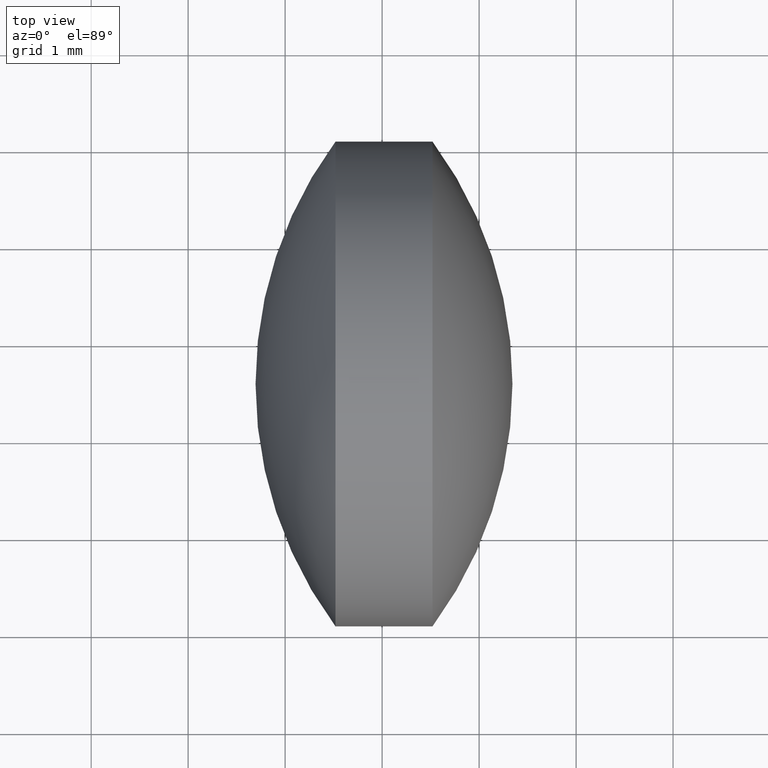
[diagram: clean part render]
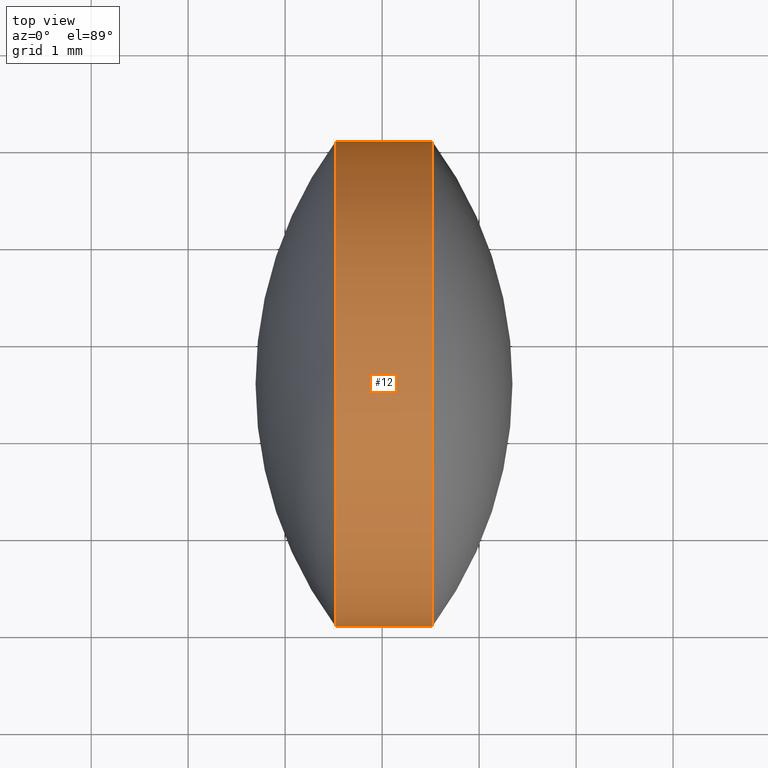
[diagram: same view with one face highlighted and labeled with its STEP entity id]
A machine part, top view. The second image highlights one B-rep face of the part: STEP entity #12.
In plain terms, the highlighted cylindrical surface (partial cylindrical patch) has radius 2.5 mm, axis along (-1, 0, -0).
Its self-contained STEP definition (entity closure, byte-faithful):
#5 = CARTESIAN_POINT ( 'NONE',  ( 16.51932948320126100, 7.070100988815897700, -3.061616997868377200E-016 ) ) ;
#9 = CARTESIAN_POINT ( 'NONE',  ( 17.51932948320127200, 12.07010098881589100, 0.0000000000000000000 ) ) ;
#12 = ADVANCED_FACE ( 'NONE', ( #70 ), #44, .T. ) ;
#21 = VERTEX_POINT ( 'NONE', #74 ) ;
#44 = CYLINDRICAL_SURFACE ( 'NONE', #227, 2.500000000000001300 ) ;
#47 = DIRECTION ( 'NONE',  ( -1.000000000000000000, 2.438814065442388400E-015, -0.0000000000000000000 ) ) ;
#50 = DIRECTION ( 'NONE',  ( -2.775557561562889000E-015, -1.000000000000000000, 0.0000000000000000000 ) ) ;
#54 = VERTEX_POINT ( 'NONE', #230 ) ;
#55 = VECTOR ( 'NONE', #289, 1000.000000000000000 ) ;
#56 = DIRECTION ( 'NONE',  ( -2.775557561562891000E-015, -1.000000000000000000, 0.0000000000000000000 ) ) ;
#70 = FACE_OUTER_BOUND ( 'NONE', #82, .T. ) ;
#74 = CARTESIAN_POINT ( 'NONE',  ( 16.51932948320127200, 12.07010098881588600, 0.0000000000000000000 ) ) ;
#82 = EDGE_LOOP ( 'NONE', ( #218, #129, #119, #157 ) ) ;
#91 = EDGE_CURVE ( 'NONE', #54, #286, #194, .T. ) ;
#92 = CARTESIAN_POINT ( 'NONE',  ( 15.23618010071484900, 7.070100988815892300, 0.0000000000000000000 ) ) ;
#114 = EDGE_CURVE ( 'NONE', #54, #295, #174, .T. ) ;
#119 = ORIENTED_EDGE ( 'NONE', *, *, #172, .F. ) ;
#126 = CARTESIAN_POINT ( 'NONE',  ( 15.23618010071486100, 12.07010098881589300, 3.061616997868385100E-016 ) ) ;
#129 = ORIENTED_EDGE ( 'NONE', *, *, #305, .T. ) ;
#149 = DIRECTION ( 'NONE',  ( -2.775557561562889800E-015, -1.000000000000000000, 0.0000000000000000000 ) ) ;
#157 = ORIENTED_EDGE ( 'NONE', *, *, #91, .F. ) ;
#167 = LINE ( 'NONE', #126, #55 ) ;
#172 = EDGE_CURVE ( 'NONE', #286, #21, #276, .T. ) ;
#174 = CIRCLE ( 'NONE', #175, 2.500000000000002200 ) ;
#175 = AXIS2_PLACEMENT_3D ( 'NONE', #189, #213, #50 ) ;
#189 = CARTESIAN_POINT ( 'NONE',  ( 17.51932948320126500, 9.570100988815887900, 0.0000000000000000000 ) ) ;
#193 = DIRECTION ( 'NONE',  ( -1.000000000000000000, 2.438814065442388400E-015, -0.0000000000000000000 ) ) ;
#194 = LINE ( 'NONE', #92, #238 ) ;
#198 = AXIS2_PLACEMENT_3D ( 'NONE', #220, #193, #56 ) ;
#212 = DIRECTION ( 'NONE',  ( -1.000000000000000000, 2.438814065442388400E-015, -0.0000000000000000000 ) ) ;
#213 = DIRECTION ( 'NONE',  ( -1.000000000000000000, 2.438814065442388400E-015, -0.0000000000000000000 ) ) ;
#218 = ORIENTED_EDGE ( 'NONE', *, *, #114, .T. ) ;
#220 = CARTESIAN_POINT ( 'NONE',  ( 16.51932948320126500, 9.570100988815889700, 0.0000000000000000000 ) ) ;
#227 = AXIS2_PLACEMENT_3D ( 'NONE', #283, #47, #149 ) ;
#230 = CARTESIAN_POINT ( 'NONE',  ( 17.51932948320125800, 7.070100988815880800, -3.061616997868388100E-016 ) ) ;
#238 = VECTOR ( 'NONE', #212, 1000.000000000000000 ) ;
#276 = CIRCLE ( 'NONE', #198, 2.500000000000000400 ) ;
#283 = CARTESIAN_POINT ( 'NONE',  ( 15.23618010071485400, 9.570100988815893200, 0.0000000000000000000 ) ) ;
#286 = VERTEX_POINT ( 'NONE', #5 ) ;
#289 = DIRECTION ( 'NONE',  ( -1.000000000000000000, 2.438814065442388400E-015, -0.0000000000000000000 ) ) ;
#295 = VERTEX_POINT ( 'NONE', #9 ) ;
#305 = EDGE_CURVE ( 'NONE', #295, #21, #167, .T. ) ;